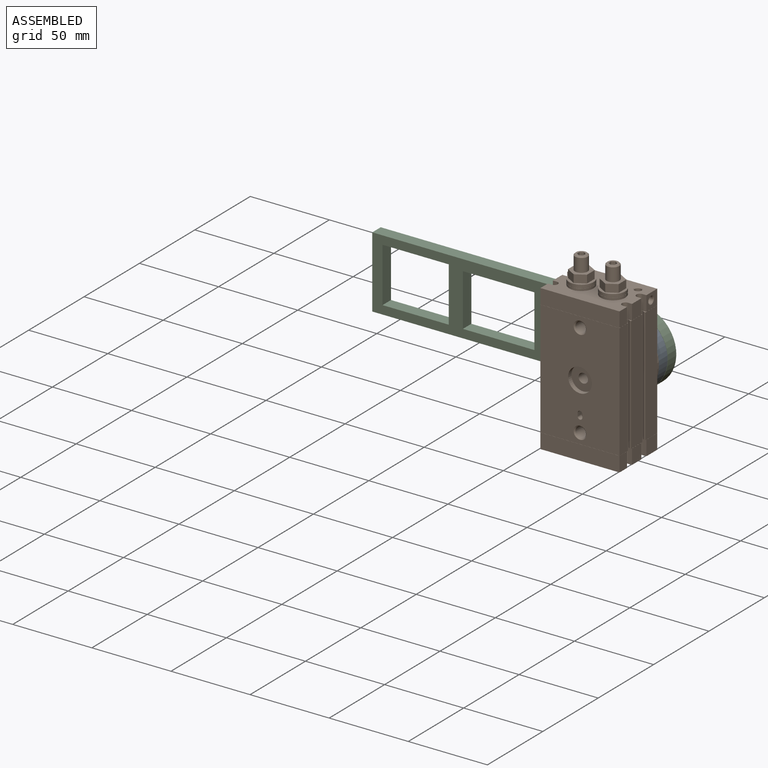
[diagram: assembled view]
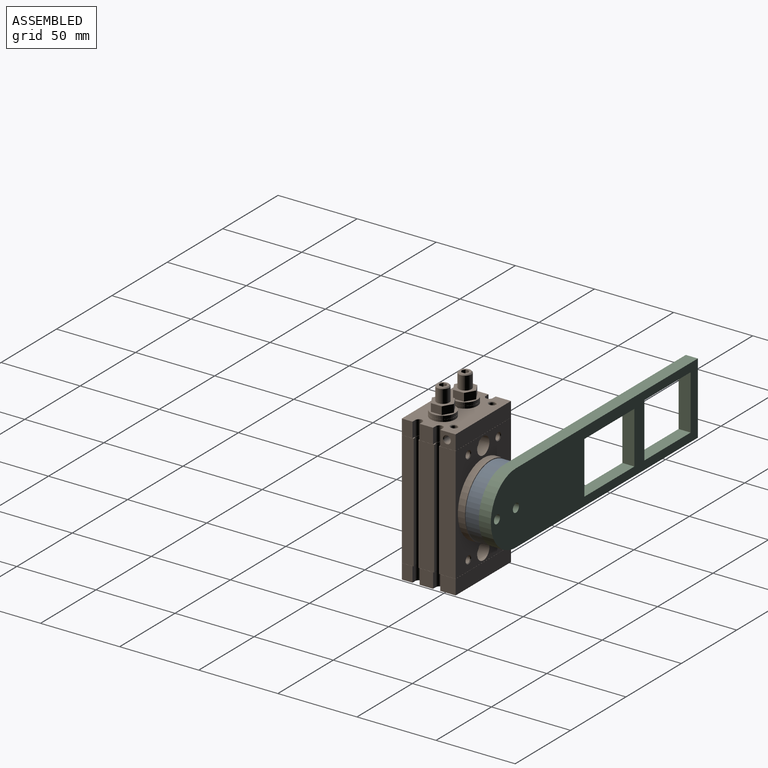
[diagram: assembled view, second angle]
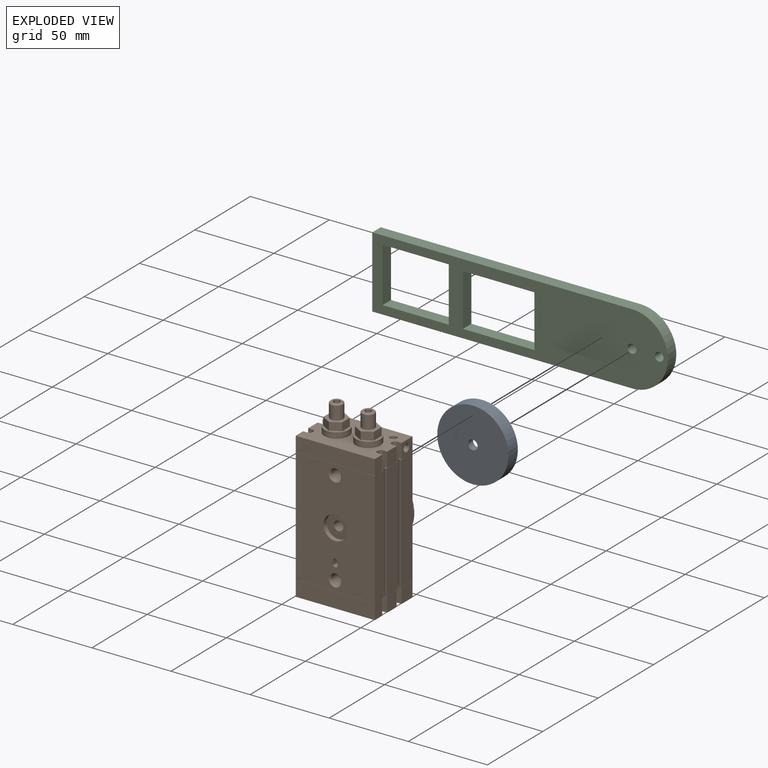
[diagram: exploded view]
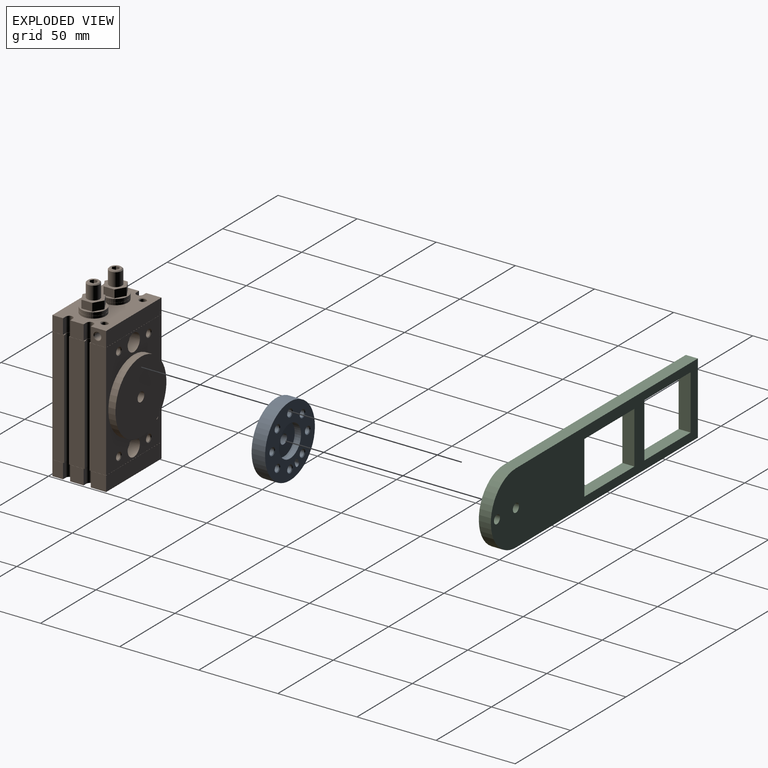
[diagram: exploded view, second angle]
ASSEMBLY  parts=3 mates=2
PART A: 35 faces, bbox 45x8.5x45 mm
  f0: plane 20x20mm, normal (0,1,0), area 285.9mm2, adj f1,f30
  f1: cylinder r=3mm len=6mm, axis (0,-1,0), area 84.8mm2, adj f0,f27
  f2: plane 3.5x1.85mm, normal (-0.92,0,0.38), area 7mm2, adj f29,f31,f32,f34
  f3: cone r=2.07mm half-angle=45deg, axis (0,1,0), area 8.8mm2, adj f4,f29
  f4: cylinder r=2.07mm len=7.57mm, axis (0,-1,0), area 98.3mm2, adj f3,f5
  f5: plane 4.13x4.13mm, normal (0,1,0), area 13.4mm2, adj f4
  f6: cone r=2.07mm half-angle=45deg, axis (0,1,0), area 8.8mm2, adj f7,f29
  f7: cylinder r=2.07mm len=7.57mm, axis (0,-1,0), area 98.3mm2, adj f6,f8
  f8: plane 4.13x4.13mm, normal (0,1,0), area 13.4mm2, adj f7
  f9: cone r=2.07mm half-angle=45deg, axis (0,1,0), area 8.8mm2, adj f10,f29
  f10: cylinder r=2.07mm len=7.57mm, axis (0,-1,0), area 98.3mm2, adj f9,f11
  f11: plane 4.13x4.13mm, normal (0,1,0), area 13.4mm2, adj f10
  f12: cone r=2.07mm half-angle=45deg, axis (0,1,0), area 8.8mm2, adj f13,f29
  f13: cylinder r=2.07mm len=7.57mm, axis (0,-1,0), area 98.3mm2, adj f12,f14
  f14: plane 4.13x4.13mm, normal (0,1,0), area 13.4mm2, adj f13
  f15: cone r=2.07mm half-angle=45deg, axis (0,1,0), area 8.8mm2, adj f16,f29
  f16: cylinder r=2.07mm len=7.57mm, axis (0,-1,0), area 98.3mm2, adj f15,f17
  f17: plane 4.13x4.13mm, normal (0,1,0), area 13.4mm2, adj f16
  f18: cone r=2.07mm half-angle=45deg, axis (0,1,0), area 8.8mm2, adj f19,f29
  f19: cylinder r=2.07mm len=7.57mm, axis (0,-1,0), area 98.3mm2, adj f18,f20
  f20: plane 4.13x4.13mm, normal (0,1,0), area 13.4mm2, adj f19
  f21: cone r=2.07mm half-angle=45deg, axis (0,1,0), area 8.8mm2, adj f22,f29
  f22: cylinder r=2.07mm len=7.57mm, axis (0,-1,0), area 98.3mm2, adj f21,f23
  f23: plane 4.13x4.13mm, normal (0,1,0), area 13.4mm2, adj f22
  f24: cone r=2.07mm half-angle=45deg, axis (0,1,0), area 8.8mm2, adj f25,f29
  f25: cylinder r=2.07mm len=7.57mm, axis (0,-1,0), area 98.3mm2, adj f24,f26
  f26: plane 4.13x4.13mm, normal (0,1,0), area 13.4mm2, adj f25
  f27: plane 45x45mm, normal (0,-1,0), area 1562.2mm2, adj f1,f28
  f28: cylinder r=22.5mm len=45mm, axis (0,1,0), area 1201.7mm2, adj f27,f29
  f29: plane 45x45mm, normal (0,1,0), area 1106.1mm2, adj f2,f3,f6,f9,f12,f15,f18,f21
  f30: cylinder r=10mm len=20mm, axis (0,1,0), area 251.3mm2, adj f0,f29
  f31: cylinder r=1.5mm len=3.5mm, axis (0,-1,0), area 16.5mm2, adj f2,f29,f32,f33
  f32: plane 4.85x3.77mm, normal (0,1,0), area 13.1mm2, adj f2,f31,f33,f34
  f33: plane 3.5x1.85mm, normal (0.92,0,-0.38), area 7mm2, adj f29,f31,f32,f34
  f34: cylinder r=1.5mm len=3.5mm, axis (0,-1,0), area 16.5mm2, adj f2,f29,f32,f33
PART B: 185 faces, bbox 50x38.5x109.7 mm
  f0: cylinder r=4mm len=8.49mm, axis (0,0,-1), area 213.3mm2, adj f1,f102
  f1: cone r=4mm half-angle=45deg, axis (0,0,-1), area 20.1mm2, adj f0,f166
  f2: plane 6.77x6.77mm, normal (0,0,1), area 22.2mm2, adj f104,f160,f161,f162,f163,f164,f165
  f3: plane 15.5x15.5mm, normal (0,0,1), area 64mm2, adj f6,f96,f97,f98,f99,f100,f101
  f4: plane 15.5x15.5mm, normal (0,0,1), area 64mm2, adj f8,f89,f90,f91,f92,f93,f94
  f5: plane 15.5x15.5mm, normal (0,0,-1), area 4.8mm2, adj f6,f10
  f6: cylinder r=7.75mm len=15.5mm, axis (0,0,1), area 97.4mm2, adj f3,f5
  f7: plane 15.5x15.5mm, normal (0,0,-1), area 4.8mm2, adj f8,f12
  f8: cylinder r=7.75mm len=15.5mm, axis (0,0,1), area 97.4mm2, adj f4,f7
  f9: plane 15.5x15.5mm, normal (0,0,1), area 4.8mm2, adj f10,f13
  f10: cylinder r=7.65mm len=15.3mm, axis (0,0,-1), area 4.8mm2, adj f5,f9
  f11: plane 15.5x15.5mm, normal (0,0,1), area 4.8mm2, adj f12,f14
  f12: cylinder r=7.65mm len=15.3mm, axis (0,0,-1), area 4.8mm2, adj f7,f11
  f13: cylinder r=7.75mm len=15.5mm, axis (0,0,1), area 73mm2, adj f9,f61
  f14: cylinder r=7.75mm len=15.5mm, axis (0,0,1), area 73mm2, adj f11,f61
  f15: plane 8.5x0.1mm, normal (0,0,1), area 0.9mm2, adj f17,f34,f45,f83
  f16: plane 6.65x0.05mm, normal (-1,0,0), area 0.3mm2, adj f23,f33,f43,f88
  f17: plane 8.5x0.05mm, normal (-1,0,0), area 0.4mm2, adj f15,f33,f34,f45
  f18: plane 9.65x0.05mm, normal (-1,0,0), area 0.5mm2, adj f19,f33,f36,f87
  f19: plane 49.8x0.05mm, normal (0,1,0), area 2.5mm2, adj f18,f20,f33,f87
  f20: plane 9.65x0.05mm, normal (1,0,0), area 0.5mm2, adj f19,f33,f37,f87
  f21: plane 8.5x0.05mm, normal (1,0,0), area 0.4mm2, adj f33,f39,f40,f86
  f22: plane 6.65x0.05mm, normal (1,0,0), area 0.3mm2, adj f23,f33,f42,f88
  f23: plane 49.8x0.05mm, normal (0,-1,0), area 2.5mm2, adj f16,f22,f33,f88
  f24: plane 50x9.75mm, normal (0,0,-1), area 6.9mm2, adj f27,f28,f29,f49,f50,f65,f66,f67
  f25: plane 6.65x0.05mm, normal (-1,0,0), area 0.3mm2, adj f32,f46,f56,f105
  f26: plane 8.5x0.05mm, normal (-1,0,0), area 0.4mm2, adj f46,f47,f58,f107
  f27: plane 9.65x0.05mm, normal (-1,0,0), area 0.5mm2, adj f24,f28,f46,f49
  f28: plane 49.8x0.05mm, normal (0,1,0), area 2.5mm2, adj f24,f27,f29,f46
  f29: plane 9.65x0.05mm, normal (1,0,0), area 0.5mm2, adj f24,f28,f46,f50
  f30: plane 8.5x0.05mm, normal (1,0,0), area 0.4mm2, adj f46,f52,f53,f106
  f31: plane 6.65x0.05mm, normal (1,0,0), area 0.3mm2, adj f32,f46,f55,f105
  f32: plane 49.8x0.05mm, normal (0,-1,0), area 2.5mm2, adj f25,f31,f46,f105
  f33: plane 50x34mm, normal (0,0,-1), area 29.2mm2, adj f16,f17,f18,f19,f20,f21,f22,f23
  f34: plane 9.5x2.5mm, normal (0,1,0), area 23.7mm2, adj f15,f17,f33,f35,f62,f83
  f35: cylinder r=2.25mm len=9.5mm, axis (0,0,1), area 67.2mm2, adj f33,f34,f36,f62
  f36: plane 9.5x2.5mm, normal (0,-1,0), area 23.7mm2, adj f18,f33,f35,f62,f87,f116
  f37: plane 9.5x2.5mm, normal (0,-1,0), area 23.7mm2, adj f20,f33,f38,f62,f87,f109
  f38: cylinder r=2.25mm len=9.5mm, axis (0,0,1), area 67.2mm2, adj f33,f37,f39,f62
  f39: plane 9.5x2.5mm, normal (0,1,0), area 23.7mm2, adj f21,f33,f38,f62,f86,f108
  f40: plane 9.5x2.5mm, normal (0,-1,0), area 23.7mm2, adj f21,f33,f41,f62,f86,f108
  f41: cylinder r=2.25mm len=9.5mm, axis (0,0,1), area 67.2mm2, adj f33,f40,f42,f62
  f42: plane 9.5x2.5mm, normal (0,1,0), area 23.7mm2, adj f22,f33,f41,f62,f88,f110
  f43: plane 9.5x2.5mm, normal (0,1,0), area 23.7mm2, adj f16,f33,f44,f62,f88,f184
  f44: cylinder r=2.25mm len=9.5mm, axis (0,0,1), area 67.2mm2, adj f33,f43,f45,f62
  f45: plane 9.5x2.5mm, normal (0,-1,0), area 23.7mm2, adj f15,f17,f33,f44,f62,f83
  f46: plane 50x34mm, normal (0,0,1), area 29.2mm2, adj f25,f26,f27,f28,f29,f30,f31,f32
  f47: plane 9.5x2.5mm, normal (0,1,0), area 23.7mm2, adj f26,f46,f48,f61,f81,f107
  f48: cylinder r=2.25mm len=9.5mm, axis (0,0,-1), area 67.2mm2, adj f46,f47,f49,f61
  f49: plane 9.5x2.5mm, normal (0,-1,0), area 23.7mm2, adj f24,f27,f46,f48,f61,f65
  f50: plane 9.5x2.5mm, normal (0,-1,0), area 23.7mm2, adj f24,f29,f46,f51,f61,f67
  f51: cylinder r=2.25mm len=9.5mm, axis (0,0,-1), area 67.2mm2, adj f46,f50,f52,f61
  f52: plane 9.5x2.5mm, normal (0,1,0), area 23.7mm2, adj f30,f46,f51,f61,f71,f106
  f53: plane 9.5x2.5mm, normal (0,-1,0), area 23.7mm2, adj f30,f46,f54,f61,f71,f106
  f54: cylinder r=2.25mm len=9.5mm, axis (0,0,-1), area 67.2mm2, adj f46,f53,f55,f61
  f55: plane 9.5x2.5mm, normal (0,1,0), area 23.7mm2, adj f31,f46,f54,f61,f75,f105
  f56: plane 9.5x2.5mm, normal (0,1,0), area 23.7mm2, adj f25,f46,f57,f61,f77,f105
  f57: cylinder r=2.25mm len=9.5mm, axis (0,0,-1), area 67.2mm2, adj f46,f56,f58,f61
  f58: plane 9.5x2.5mm, normal (0,-1,0), area 23.7mm2, adj f26,f46,f57,f61,f81,f107
  f59: cylinder r=23mm len=46mm, axis (0,1,0), area 650.3mm2, adj f60,f119
  f60: plane 46x46mm, normal (0,1,0), area 1633.6mm2, adj f59,f120
  f61: plane 50x34mm, normal (0,0,1), area 1206.5mm2, adj f13,f14,f47,f48,f49,f50,f51,f52
  f62: plane 50x34mm, normal (0,0,-1), area 1623.2mm2, adj f34,f35,f36,f37,f38,f39,f40,f41
  f63: cylinder r=2.1mm len=73mm, axis (0,0,1), area 719.3mm2, adj f33,f46,f64,f82
  f64: plane 73x1.03mm, normal (0,-1,0), area 75.2mm2, adj f33,f46,f63,f114
  f65: plane 9.75x9.45mm, normal (-1,0,0), area 72.5mm2, adj f24,f49,f61,f66,f181
  f66: plane 50x9.45mm, normal (0,1,0), area 472.5mm2, adj f24,f61,f65,f67
  f67: plane 9.75x9.45mm, normal (1,0,0), area 72.5mm2, adj f24,f50,f61,f66,f180
  f68: plane 73x1.03mm, normal (0,-1,0), area 75.2mm2, adj f33,f46,f69,f112
  f69: cylinder r=2.1mm len=73mm, axis (0,0,1), area 719.3mm2, adj f33,f46,f68,f70
  f70: plane 73x1.03mm, normal (0,1,0), area 75.2mm2, adj f33,f46,f69,f111
  f71: plane 9.45x8.5mm, normal (1,0,0), area 80.3mm2, adj f52,f53,f61,f106
  f72: plane 73x1.03mm, normal (0,-1,0), area 75.2mm2, adj f33,f46,f73,f111
  f73: cylinder r=2.1mm len=73mm, axis (0,0,1), area 719.3mm2, adj f33,f46,f72,f74
  f74: plane 73x1.03mm, normal (0,1,0), area 75.2mm2, adj f33,f46,f73,f113
  f75: plane 9.45x6.75mm, normal (1,0,0), area 63.8mm2, adj f55,f61,f76,f105
  f76: plane 50x9.45mm, normal (0,-1,0), area 472.5mm2, adj f61,f75,f77,f105
  f77: plane 9.45x6.75mm, normal (-1,0,0), area 63.8mm2, adj f56,f61,f76,f105
  f78: plane 73x1.03mm, normal (0,1,0), area 75.2mm2, adj f33,f46,f79,f85
  f79: cylinder r=2.1mm len=73mm, axis (0,0,1), area 719.3mm2, adj f33,f46,f78,f80
  f80: plane 73x1.03mm, normal (0,-1,0), area 75.2mm2, adj f33,f46,f79,f84
  f81: plane 9.45x8.5mm, normal (-1,0,0), area 80.3mm2, adj f47,f58,f61,f107
  f82: plane 73x1.03mm, normal (0,1,0), area 75.2mm2, adj f33,f46,f63,f84
  f83: plane 9.45x8.5mm, normal (-1,0,0), area 80.3mm2, adj f15,f34,f45,f62
  f84: plane 73x10mm, normal (-1,0,0), area 730mm2, adj f33,f46,f80,f82
  f85: plane 73x7.5mm, normal (-1,0,0), area 547.5mm2, adj f33,f46,f78,f115
  f86: plane 8.5x0.1mm, normal (0,0,1), area 0.9mm2, adj f21,f39,f40,f108
  f87: plane 50x9.75mm, normal (0,0,1), area 6.9mm2, adj f18,f19,f20,f36,f37,f109,f116,f118
  f88: plane 50x6.75mm, normal (0,0,1), area 6.3mm2, adj f16,f22,f23,f42,f43,f110,f117,f184
  f89: plane 6.93x5mm, normal (-1,0,0), area 34.6mm2, adj f4,f90,f94,f95
  f90: plane 6x5mm, normal (-0.5,-0.87,0), area 34.6mm2, adj f4,f89,f91,f95
  f91: plane 6x5mm, normal (0.5,-0.87,0), area 34.6mm2, adj f4,f90,f92,f95
  f92: plane 6.93x5mm, normal (1,0,0), area 34.6mm2, adj f4,f91,f93,f95
  f93: plane 6x5mm, normal (0.5,0.87,0), area 34.6mm2, adj f4,f92,f94,f95
  f94: plane 6x5mm, normal (-0.5,0.87,0), area 34.6mm2, adj f4,f89,f93,f95
  f95: plane 13.86x12mm, normal (0,0,1), area 74.4mm2, adj f89,f90,f91,f92,f93,f94,f103
  f96: plane 6.93x5mm, normal (-1,0,0), area 34.6mm2, adj f3,f97,f101,f102
  f97: plane 6x5mm, normal (-0.5,-0.87,0), area 34.6mm2, adj f3,f96,f98,f102
  f98: plane 6x5mm, normal (0.5,-0.87,0), area 34.6mm2, adj f3,f97,f99,f102
  f99: plane 6.93x5mm, normal (1,0,0), area 34.6mm2, adj f3,f98,f100,f102
  f100: plane 6x5mm, normal (0.5,0.87,0), area 34.6mm2, adj f3,f99,f101,f102
  f101: plane 6x5mm, normal (-0.5,0.87,0), area 34.6mm2, adj f3,f96,f100,f102
  f102: plane 13.86x12mm, normal (0,0,1), area 74.4mm2, adj f0,f96,f97,f98,f99,f100,f101
  f103: cylinder r=4mm len=8.49mm, axis (0,0,-1), area 213.3mm2, adj f95,f104
  f104: cone r=4mm half-angle=45deg, axis (0,0,-1), area 20.1mm2, adj f2,f103
  f105: plane 50x6.75mm, normal (0,0,-1), area 6.3mm2, adj f25,f31,f32,f55,f56,f75,f76,f77
  f106: plane 8.5x0.1mm, normal (0,0,-1), area 0.9mm2, adj f30,f52,f53,f71
  f107: plane 8.5x0.1mm, normal (0,0,-1), area 0.9mm2, adj f26,f47,f58,f81
  f108: plane 9.45x8.5mm, normal (1,0,0), area 80.3mm2, adj f39,f40,f62,f86
  f109: plane 9.75x9.45mm, normal (1,0,0), area 92.1mm2, adj f37,f62,f87,f118
  f110: plane 9.45x6.75mm, normal (1,0,0), area 63.8mm2, adj f42,f62,f88,f117
  f111: plane 73x10mm, normal (1,0,0), area 730mm2, adj f33,f46,f70,f72
  f112: plane 73x10.5mm, normal (1,0,0), area 766.5mm2, adj f33,f46,f68,f119
  f113: plane 73x7.5mm, normal (1,0,0), area 547.5mm2, adj f33,f46,f74,f115
  f114: plane 73x10.5mm, normal (-1,0,0), area 766.5mm2, adj f33,f46,f64,f119
  f115: plane 73x50mm, normal (0,-1,0), area 3359.7mm2, adj f33,f46,f85,f113,f122,f128,f167,f168
  f116: plane 9.75x9.45mm, normal (-1,0,0), area 92.1mm2, adj f36,f62,f87,f118
  f117: plane 50x9.45mm, normal (0,-1,0), area 472.5mm2, adj f62,f88,f110,f184
  f118: plane 50x9.45mm, normal (0,1,0), area 472.5mm2, adj f62,f87,f109,f116
  f119: plane 73x50mm, normal (0,1,0), area 1706.4mm2, adj f33,f46,f59,f112,f114,f127,f133,f134
  f120: cylinder r=3mm len=35.5mm, axis (0,1,0), area 669.2mm2, adj f60,f121
  f121: plane 15x15mm, normal (0,-1,0), area 148.4mm2, adj f120,f167
  f122: cone r=3.32mm half-angle=45deg, axis (0,-1,0), area 22mm2, adj f115,f123
  f123: cylinder r=3.32mm len=11.32mm, axis (0,1,0), area 236.5mm2, adj f122,f124
  f124: plane 6.8x6.8mm, normal (0,1,0), area 1.6mm2, adj f123,f125
  f125: cylinder r=3.4mm len=15.5mm, axis (0,1,0), area 331.1mm2, adj f124,f126
  f126: plane 11x11mm, normal (0,1,0), area 58.7mm2, adj f125,f127
  f127: cylinder r=5.5mm len=11mm, axis (0,1,0), area 224.6mm2, adj f119,f126
  f128: cone r=3.32mm half-angle=45deg, axis (0,-1,0), area 22mm2, adj f115,f129
  f129: cylinder r=3.32mm len=11.32mm, axis (0,1,0), area 236.5mm2, adj f128,f130
  f130: plane 6.8x6.8mm, normal (0,1,0), area 1.6mm2, adj f129,f131
  f131: cylinder r=3.4mm len=15.5mm, axis (0,1,0), area 331.1mm2, adj f130,f132
  f132: plane 11x11mm, normal (0,1,0), area 58.7mm2, adj f131,f133
  f133: cylinder r=5.5mm len=11mm, axis (0,1,0), area 224.6mm2, adj f119,f132
  f134: cone r=2.07mm half-angle=45deg, axis (0,1,0), area 8.8mm2, adj f119,f135
  f135: cylinder r=2.07mm len=7.57mm, axis (0,-1,0), area 98.3mm2, adj f134,f136
  f136: plane 4.13x4.13mm, normal (0,1,0), area 13.4mm2, adj f135
  f137: cone r=2.07mm half-angle=45deg, axis (0,1,0), area 8.8mm2, adj f119,f138
  f138: cylinder r=2.07mm len=7.57mm, axis (0,-1,0), area 98.3mm2, adj f137,f139
  f139: plane 4.13x4.13mm, normal (0,1,0), area 13.4mm2, adj f138
  f140: cone r=2.07mm half-angle=45deg, axis (0,1,0), area 8.8mm2, adj f119,f141
  f141: cylinder r=2.07mm len=7.57mm, axis (0,-1,0), area 98.3mm2, adj f140,f142
  f142: plane 4.13x4.13mm, normal (0,1,0), area 13.4mm2, adj f141
  f143: cone r=2.07mm half-angle=45deg, axis (0,1,0), area 8.8mm2, adj f119,f144
  f144: cylinder r=2.07mm len=7.57mm, axis (0,-1,0), area 98.3mm2, adj f143,f145
  f145: plane 4.13x4.13mm, normal (0,1,0), area 13.4mm2, adj f144
  f146: cone r=2.07mm half-angle=45deg, axis (0,0,1), area 8.8mm2, adj f61,f147
  f147: cylinder r=2.07mm len=4.57mm, axis (0,0,-1), area 59.3mm2, adj f146,f148
  f148: plane 4.13x4.13mm, normal (0,0,1), area 13.4mm2, adj f147
  f149: cone r=2.07mm half-angle=45deg, axis (0,0,1), area 8.8mm2, adj f61,f150
  f150: cylinder r=2.07mm len=4.57mm, axis (0,0,-1), area 59.3mm2, adj f149,f151
  f151: plane 4.13x4.13mm, normal (0,0,1), area 13.4mm2, adj f150
  f152: plane 4.62x4mm, normal (0,0,1), area 13.9mm2, adj f153,f154,f155,f156,f157,f158
  f153: plane 5x2mm, normal (0.5,-0.87,0), area 11.5mm2, adj f152,f154,f158,f166
  f154: plane 5x2mm, normal (-0.5,-0.87,0), area 11.5mm2, adj f152,f153,f155,f166
  f155: plane 5x2.31mm, normal (-1,0,0), area 11.5mm2, adj f152,f154,f156,f166
  f156: plane 5x2mm, normal (-0.5,0.87,0), area 11.5mm2, adj f152,f155,f157,f166
  f157: plane 5x2mm, normal (0.5,0.87,0), area 11.5mm2, adj f152,f156,f158,f166
  f158: plane 5x2.31mm, normal (1,0,0), area 11.5mm2, adj f152,f153,f157,f166
  f159: plane 4.62x4mm, normal (0,0,1), area 13.9mm2, adj f160,f161,f162,f163,f164,f165
  f160: plane 5x2mm, normal (0.5,-0.87,0), area 11.5mm2, adj f2,f159,f161,f165
  f161: plane 5x2mm, normal (-0.5,-0.87,0), area 11.5mm2, adj f2,f159,f160,f162
  f162: plane 5x2.31mm, normal (-1,0,0), area 11.5mm2, adj f2,f159,f161,f163
  f163: plane 5x2mm, normal (-0.5,0.87,0), area 11.5mm2, adj f2,f159,f162,f164
  f164: plane 5x2mm, normal (0.5,0.87,0), area 11.5mm2, adj f2,f159,f163,f165
  f165: plane 5x2.31mm, normal (1,0,0), area 11.5mm2, adj f2,f159,f160,f164
  f166: plane 6.77x6.77mm, normal (0,0,1), area 22.2mm2, adj f1,f153,f154,f155,f156,f157,f158
  f167: cylinder r=7.5mm len=15mm, axis (0,1,0), area 141.4mm2, adj f115,f121
  f168: plane 3.5x2mm, normal (1,0,0), area 7mm2, adj f115,f169,f171,f172
  f169: cylinder r=1.5mm len=3.5mm, axis (0,1,0), area 16.5mm2, adj f115,f168,f170,f172
  f170: plane 3.5x2mm, normal (-1,0,0), area 7mm2, adj f115,f169,f171,f172
  f171: cylinder r=1.5mm len=3.5mm, axis (0,1,0), area 16.5mm2, adj f115,f168,f170,f172
  f172: plane 5x3mm, normal (0,-1,0), area 13.1mm2, adj f168,f169,f170,f171
  f173: plane 3.5x1.41mm, normal (-0.71,0,0.71), area 7mm2, adj f119,f174,f176,f177
  f174: cylinder r=1.5mm len=3.5mm, axis (0,-1,0), area 16.5mm2, adj f119,f173,f175,f177
  f175: plane 3.5x1.41mm, normal (0.71,0,-0.71), area 7mm2, adj f119,f174,f176,f177
  f176: cylinder r=1.5mm len=3.5mm, axis (0,-1,0), area 16.5mm2, adj f119,f173,f175,f177
  f177: plane 4.41x4.41mm, normal (0,1,0), area 13.1mm2, adj f173,f174,f175,f176
  f178: plane 4.13x4.13mm, normal (1,0,0), area 13.4mm2, adj f179
  f179: cylinder r=2.07mm len=4.57mm, axis (-1,0,0), area 59.3mm2, adj f178,f180
  f180: cone r=2.07mm half-angle=45deg, axis (1,0,0), area 8.8mm2, adj f67,f179
  f181: cone r=2.5mm half-angle=45deg, axis (-1,0,0), area 8.8mm2, adj f65,f182
  f182: cylinder r=2.07mm len=4.57mm, axis (-1,0,0), area 59.3mm2, adj f181,f183
  f183: plane 4.13x4.13mm, normal (-1,0,0), area 13.4mm2, adj f182
  f184: plane 9.45x6.75mm, normal (-1,0,0), area 63.8mm2, adj f43,f62,f88,f117
PART C: 16 faces, bbox 186.8x7.6x45.3 mm
  f0: plane 32.97x7.62mm, normal (1,0,0), area 251.2mm2, adj f1,f9,f14,f15
  f1: plane 45.19x7.62mm, normal (0,0,-1), area 344.3mm2, adj f0,f2,f14,f15
  f2: plane 32.97x7.62mm, normal (-1,0,0), area 251.2mm2, adj f1,f9,f14,f15
  f3: plane 34.47x7.62mm, normal (1,0,0), area 262.7mm2, adj f4,f10,f14,f15
  f4: plane 41.81x7.62mm, normal (0,0,-1), area 318.6mm2, adj f3,f5,f14,f15
  f5: plane 34.47x7.62mm, normal (-1,0,0), area 262.7mm2, adj f4,f10,f14,f15
  f6: plane 162.85x7.62mm, normal (0,0,-1), area 1240.9mm2, adj f7,f12,f14,f15
  f7: cylinder r=22.64mm len=45.28mm, axis (0,1,0), area 552.2mm2, adj f6,f8,f14,f15
  f8: plane 164.19x7.62mm, normal (0,0,1), area 1251.2mm2, adj f7,f12,f14,f15
  f9: plane 45.19x7.62mm, normal (0,0,1), area 344.3mm2, adj f0,f2,f14,f15
  f10: plane 41.81x7.62mm, normal (0,0,1), area 318.6mm2, adj f3,f5,f14,f15
  f11: cylinder r=2.76mm len=7.62mm, axis (0,1,0), area 132.4mm2, adj f14,f15
  f12: plane 45.24x7.62mm, normal (-1,0,0), area 344.7mm2, adj f6,f8,f14,f15
  f13: cylinder r=2.72mm len=7.62mm, axis (0,1,0), area 130.4mm2, adj f14,f15
  f14: plane 186.83x45.28mm, normal (0,-1,0), area 5254.7mm2, adj f0,f1,f2,f3,f4,f5,f6,f7
  f15: plane 186.83x45.28mm, normal (0,1,0), area 5254.7mm2, adj f0,f1,f2,f3,f4,f5,f6,f7
PLACE A t=(-70.23,73.69,-49.32)mm
PLACE B t=(-70.23,26.69,-95.32)mm
PLACE C t=(-70.23,81.31,-95.4)mm
MATE revolute A.f1 <-> B.f59  axis (0,-1,0) through (-70.23,65.19,-49.32)mm
MATE fastened C.f7 <-> A.f1  axis (0,-1,0) through (-70.23,73.69,-49.32)mm
